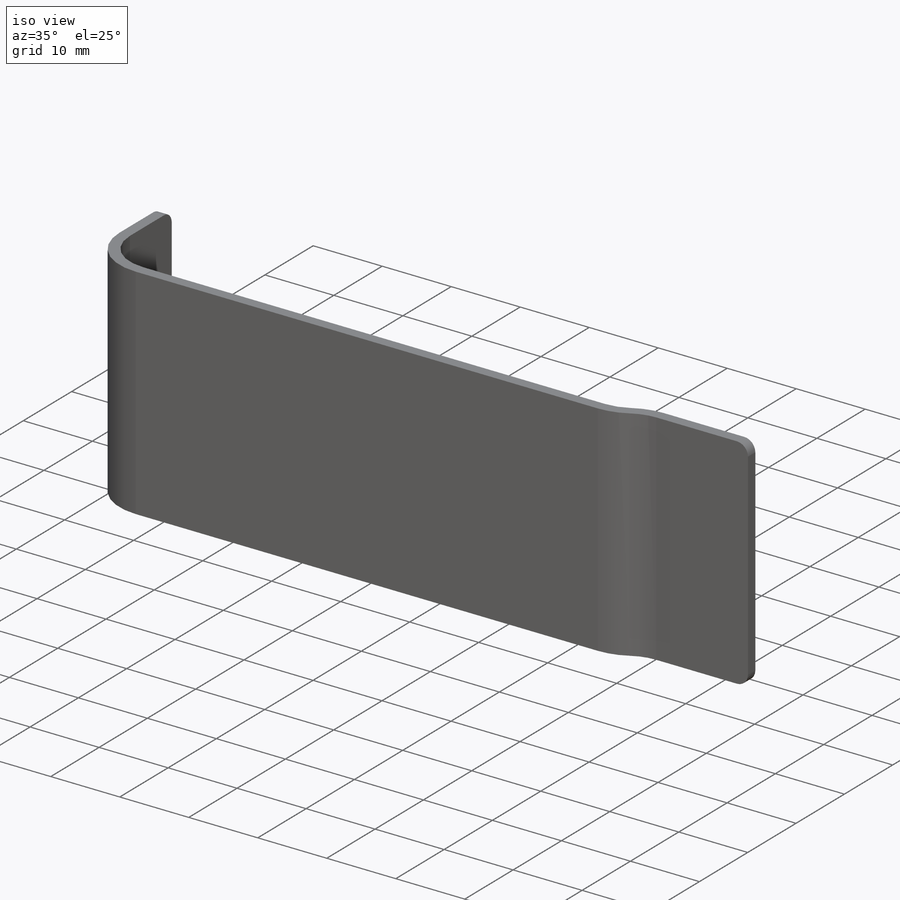
[diagram: iso view]
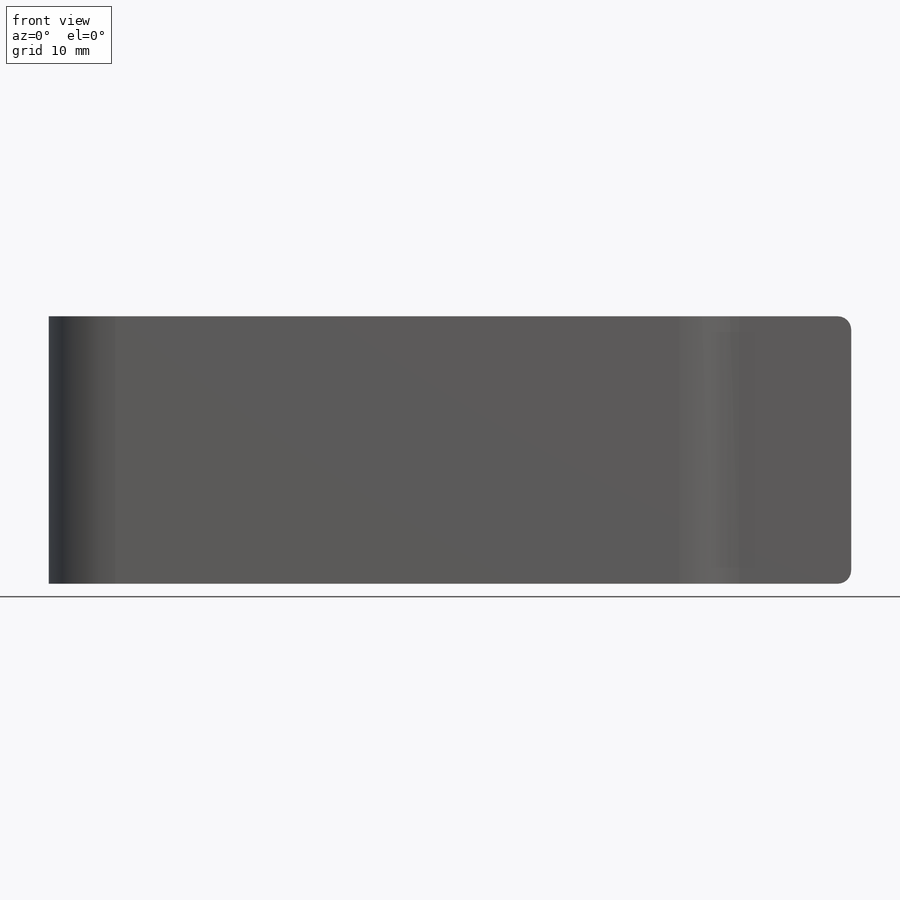
[diagram: front view]
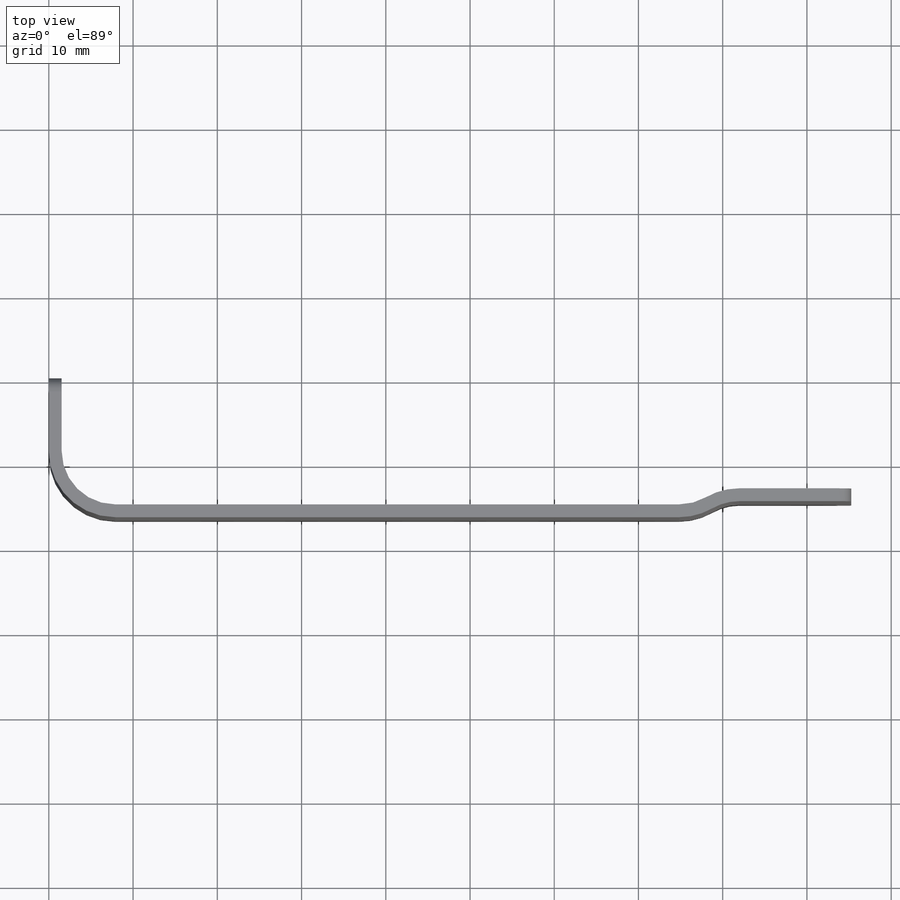
[diagram: top view]
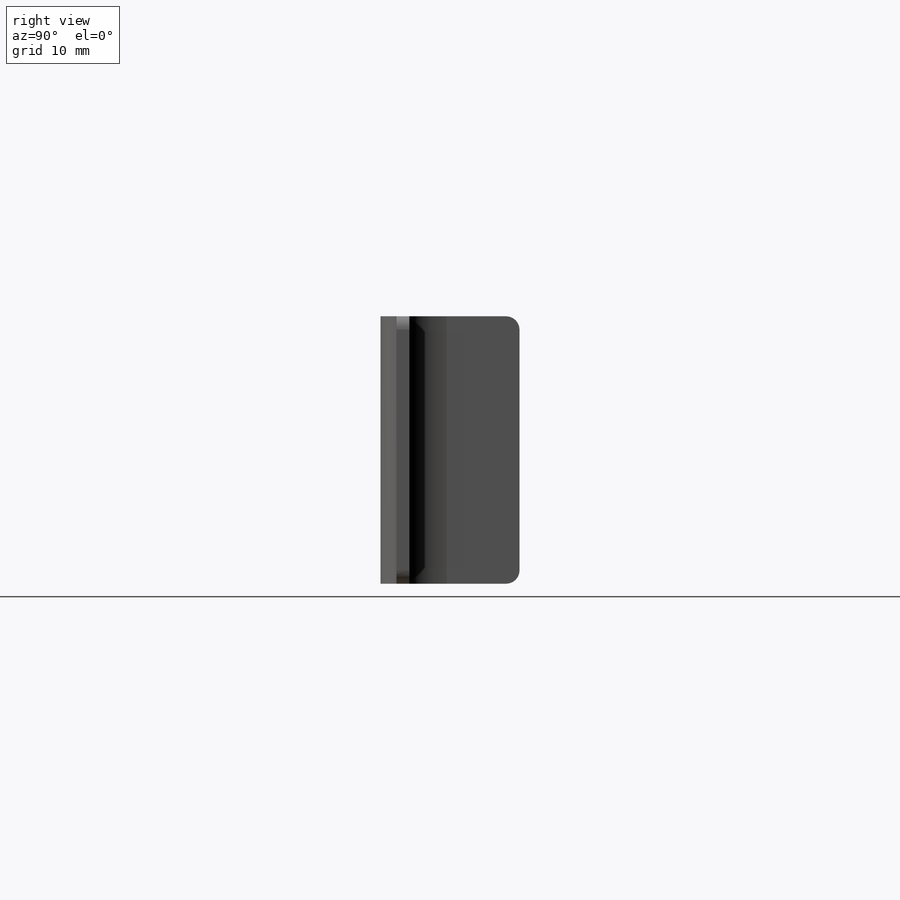
[diagram: right view]
SOLIDWORKS PART (.sldprt)
format: sldprt  version: not decoded by parser v0  size: 224,768 bytes
history: native  units: mm
features: sketch x3, material x1, extrude x1, sheet_metal_op x1, fillet x1 + 3 further entries (+16 scaffold rows collapsed)
feature tree (26):
  scaffold x16  (default folders/planes/origin — collapsed)
  material  "Material <not specified>"
  sketch  "Sketch1"  dims[c1.D1=~78.333272mm c2.D1=95.25mm c2.D2=31.75mm]
  extrude  "Extrude1"  Depth=16.51mm
  sheet_metal_op  "Sheet-Metal1"  Thickness=1.524mm
  sketch  "Sketch3"  dims[c1.JogBend1=0.0 c1.D1=6.35mm c1.D4=30.0deg c1.D5=2.0 c1.D8=0.762mm c1.D9=0.762mm c1.JogBend2=0.0 c2.D1=6.35mm c2.D4=30.0deg c2.D5=3.0 c2.D8=0.762mm c2.D9=0.762mm c3.D1=6.35mm c3.D2=500.0mm c3.D3=0.0mm c4.D2=1.4351mm c4.D3=30.0deg]
  fillet  "Fillet1"  Radius=1.5875mm
  "Flat-Pattern1"
  sketch  "Bend-Lines1"
  "Flatten-<JogBend1>1"
  "Flatten-<JogBend2>1"
decode coverage: 5 of 6 modeling features carry decoded parameters; 3 rows unclassified (native names shown)
note: ~ marks probable driven/reference dimensions
note: suppression state not decoded; provenance and decode notes live in map.json
